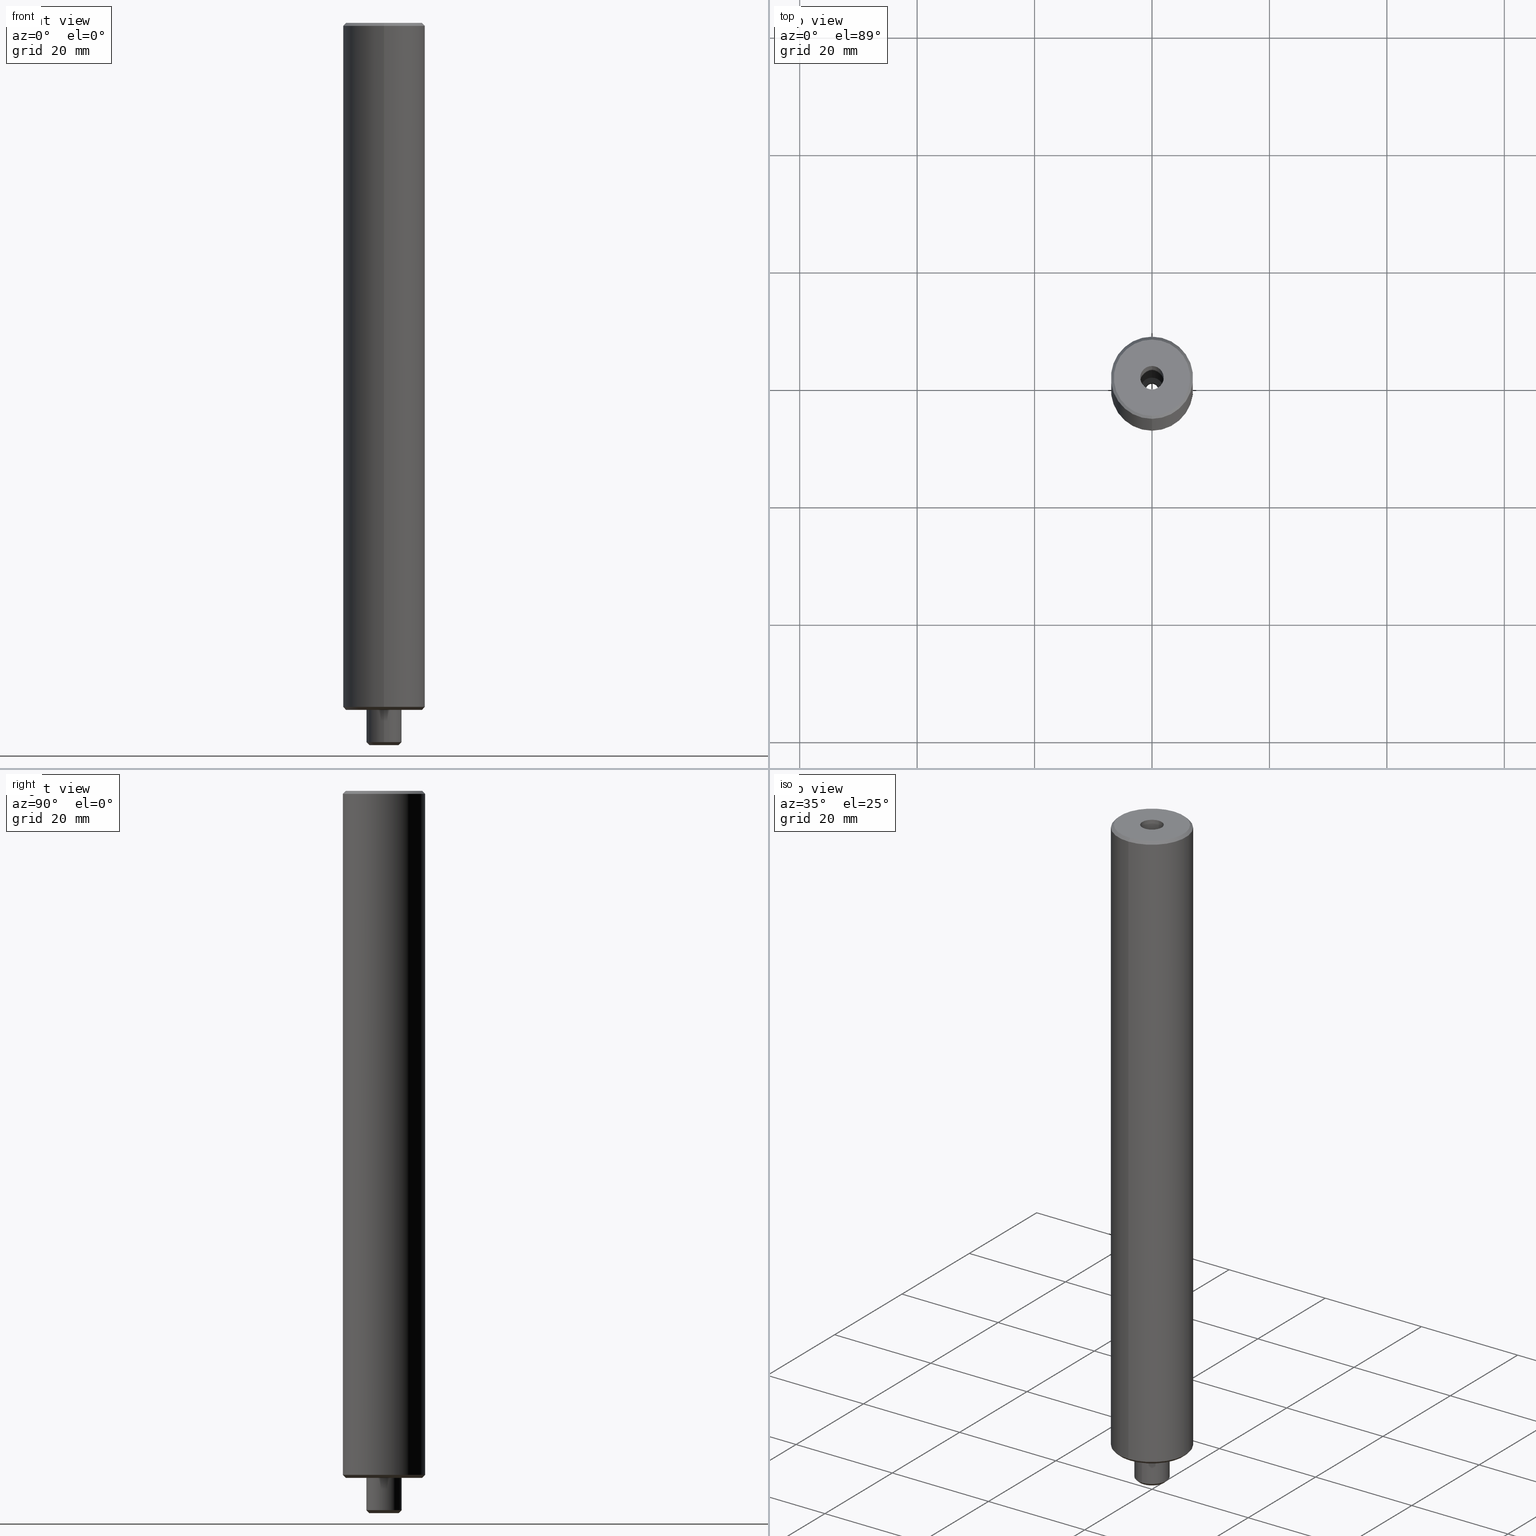
[diagram: canonical four-view strip — front | top / right | iso, engineering-drawing reading convention]
A machine part, canonical four-view strip (front | top / right | iso — engineering-drawing reading convention). The complete STEP part file that produces these views, byte-faithful:
ISO-10303-21;
HEADER;
FILE_DESCRIPTION(('no description'),'unknown implementation level');
FILE_NAME('2B4671EF-FBDA-4EDB-9770-4CDC827F8C58_export.stp','  ',('CIMSOURCE GmbH'),('CADClick - KiM GmbH - www.kimweb.de'),'unknown preprocess','ACIS','unknown authorization');
FILE_SCHEMA(('automotive_design'));
ENDSEC;
DATA;
#1=MECHANICAL_DESIGN_GEOMETRIC_PRESENTATION_REPRESENTATION(' ',(#10,#11,#12,#13,#14,#15,#16,#17,#18,#19,#20,#21,#22,#23,#24,#25,#26,#27,#28,#29,#30,#31,#32,#33,#34,#35,#36,#37,#38,#39,#40,#41,#42,#43,#44,#45,#46,#47,#48,#49,#50,#51,#52,#53,#54,#55,#56,#57,#58,#59,#60,#61,#62,#63,#64,#65,#66,#67,#68,#69,#70,#71,#72,#73,#74,#75,#76,#77,#78,#79,#80,#81,#82,#83,#84,#85,#86,#87,#88,#89),#6);
#2=PRODUCT_DEFINITION_CONTEXT('',#90,'design');
#3=APPLICATION_PROTOCOL_DEFINITION('INTERNATIONAL STANDARD','automotive_design',1994,#90);
#4=PRODUCT_CATEGORY_RELATIONSHIP('NONE','NONE',#91,#92);
#5=SHAPE_DEFINITION_REPRESENTATION(#93,#94);
#6= (GEOMETRIC_REPRESENTATION_CONTEXT(3)GLOBAL_UNCERTAINTY_ASSIGNED_CONTEXT((#97))GLOBAL_UNIT_ASSIGNED_CONTEXT((#99,#100,#101))REPRESENTATION_CONTEXT('NONE','WORKSPACE'));
#10=STYLED_ITEM('',(#103),#104);
#11=STYLED_ITEM('',(#105),#106);
#12=STYLED_ITEM('',(#107),#108);
#13=STYLED_ITEM('',(#109),#110);
#14=STYLED_ITEM('',(#111),#112);
#15=STYLED_ITEM('',(#113),#114);
#16=STYLED_ITEM('',(#115),#116);
#17=STYLED_ITEM('',(#117),#118);
#18=STYLED_ITEM('',(#119),#120);
#19=STYLED_ITEM('',(#121),#122);
#20=STYLED_ITEM('',(#123),#124);
#21=STYLED_ITEM('',(#125),#126);
#22=STYLED_ITEM('',(#127),#128);
#23=STYLED_ITEM('',(#129),#130);
#24=STYLED_ITEM('',(#131),#132);
#25=STYLED_ITEM('',(#133),#134);
#26=STYLED_ITEM('',(#135),#136);
#27=STYLED_ITEM('',(#137),#138);
#28=STYLED_ITEM('',(#139),#140);
#29=STYLED_ITEM('',(#141),#142);
#30=STYLED_ITEM('',(#143),#144);
#31=STYLED_ITEM('',(#145),#146);
#32=STYLED_ITEM('',(#147),#148);
#33=STYLED_ITEM('',(#149),#150);
#34=STYLED_ITEM('',(#151),#152);
#35=STYLED_ITEM('',(#153),#154);
#36=STYLED_ITEM('',(#155),#156);
#37=STYLED_ITEM('',(#157),#158);
#38=STYLED_ITEM('',(#159),#160);
#39=STYLED_ITEM('',(#161),#162);
#40=STYLED_ITEM('',(#163),#164);
#41=STYLED_ITEM('',(#165),#166);
#42=STYLED_ITEM('',(#167),#168);
#43=STYLED_ITEM('',(#169),#170);
#44=STYLED_ITEM('',(#171),#172);
#45=STYLED_ITEM('',(#173),#174);
#46=STYLED_ITEM('',(#175),#176);
#47=STYLED_ITEM('',(#177),#178);
#48=STYLED_ITEM('',(#179),#180);
#49=STYLED_ITEM('',(#181),#182);
#50=STYLED_ITEM('',(#183),#184);
#51=STYLED_ITEM('',(#185),#186);
#52=STYLED_ITEM('',(#187),#188);
#53=STYLED_ITEM('',(#189),#190);
#54=STYLED_ITEM('',(#191),#192);
#55=STYLED_ITEM('',(#193),#194);
#56=STYLED_ITEM('',(#195),#196);
#57=STYLED_ITEM('',(#197),#198);
#58=STYLED_ITEM('',(#199),#200);
#59=STYLED_ITEM('',(#201),#202);
#60=STYLED_ITEM('',(#203),#204);
#61=STYLED_ITEM('',(#205),#206);
#62=STYLED_ITEM('',(#207),#208);
#63=STYLED_ITEM('',(#209),#210);
#64=STYLED_ITEM('',(#211),#212);
#65=STYLED_ITEM('',(#213),#214);
#66=STYLED_ITEM('',(#215),#216);
#67=STYLED_ITEM('',(#217),#218);
#68=STYLED_ITEM('',(#219),#220);
#69=STYLED_ITEM('',(#221),#222);
#70=STYLED_ITEM('',(#223),#224);
#71=STYLED_ITEM('',(#225),#226);
#72=STYLED_ITEM('',(#227),#228);
#73=STYLED_ITEM('',(#229),#230);
#74=STYLED_ITEM('',(#231),#232);
#75=STYLED_ITEM('',(#233),#234);
#76=STYLED_ITEM('',(#235),#236);
#77=STYLED_ITEM('',(#237),#238);
#78=STYLED_ITEM('',(#239),#240);
#79=STYLED_ITEM('',(#241),#242);
#80=STYLED_ITEM('',(#243),#244);
#81=STYLED_ITEM('',(#245),#246);
#82=STYLED_ITEM('',(#247),#248);
#83=STYLED_ITEM('',(#249),#250);
#84=STYLED_ITEM('',(#251),#252);
#85=STYLED_ITEM('',(#253),#254);
#86=STYLED_ITEM('',(#255),#256);
#87=STYLED_ITEM('',(#257),#258);
#88=STYLED_ITEM('',(#259),#260);
#89=STYLED_ITEM('',(#261),#262);
#90=APPLICATION_CONTEXT(' ');
#91=PRODUCT_CATEGORY('part','NONE');
#92=PRODUCT_RELATED_PRODUCT_CATEGORY('detail',' ',(#263));
#93=PRODUCT_DEFINITION_SHAPE('NONE','NONE',#264);
#94=ADVANCED_BREP_SHAPE_REPRESENTATION('NONE',(#180,#265),#6);
#97=UNCERTAINTY_MEASURE_WITH_UNIT(LENGTH_MEASURE(1.0E-006),#99,'','');
#99= (CONVERSION_BASED_UNIT('MILLIMETRE',#268)LENGTH_UNIT()NAMED_UNIT(#271));
#100= (NAMED_UNIT(#273)PLANE_ANGLE_UNIT()SI_UNIT($,.RADIAN.));
#101= (NAMED_UNIT(#273)SOLID_ANGLE_UNIT()SI_UNIT($,.STERADIAN.));
#103=PRESENTATION_STYLE_ASSIGNMENT((#279));
#104=VERTEX_POINT('NONE',#280);
#105=PRESENTATION_STYLE_ASSIGNMENT((#281));
#106=VERTEX_POINT('NONE',#282);
#107=PRESENTATION_STYLE_ASSIGNMENT((#283));
#108=EDGE_CURVE('NONE',#216,#236,#284,.T.);
#109=PRESENTATION_STYLE_ASSIGNMENT((#285));
#110=EDGE_CURVE('NONE',#106,#104,#286,.T.);
#111=PRESENTATION_STYLE_ASSIGNMENT((#287));
#112=EDGE_CURVE('NONE',#154,#262,#288,.T.);
#113=PRESENTATION_STYLE_ASSIGNMENT((#289));
#114=VERTEX_POINT('NONE',#290);
#115=PRESENTATION_STYLE_ASSIGNMENT((#291));
#116=EDGE_CURVE('NONE',#194,#226,#292,.T.);
#117=PRESENTATION_STYLE_ASSIGNMENT((#293));
#118=EDGE_CURVE('NONE',#104,#106,#294,.T.);
#119=PRESENTATION_STYLE_ASSIGNMENT((#295));
#120=EDGE_CURVE('NONE',#262,#154,#296,.T.);
#121=PRESENTATION_STYLE_ASSIGNMENT((#297));
#122=EDGE_CURVE('NONE',#170,#134,#298,.T.);
#123=PRESENTATION_STYLE_ASSIGNMENT((#299));
#124=EDGE_CURVE('NONE',#230,#152,#300,.T.);
#125=PRESENTATION_STYLE_ASSIGNMENT((#301));
#126=EDGE_CURVE('NONE',#152,#230,#302,.T.);
#127=PRESENTATION_STYLE_ASSIGNMENT((#303));
#128=EDGE_CURVE('NONE',#104,#170,#304,.T.);
#129=PRESENTATION_STYLE_ASSIGNMENT((#305));
#130=ADVANCED_FACE('NONE',(#306),#307,.T.);
#131=PRESENTATION_STYLE_ASSIGNMENT((#308));
#132=ADVANCED_FACE('NONE',(#309,#310),#311,.F.);
#133=PRESENTATION_STYLE_ASSIGNMENT((#312));
#134=VERTEX_POINT('NONE',#313);
#135=PRESENTATION_STYLE_ASSIGNMENT((#314));
#136=EDGE_CURVE('NONE',#230,#262,#315,.T.);
#137=PRESENTATION_STYLE_ASSIGNMENT((#316));
#138=EDGE_CURVE('NONE',#186,#166,#317,.T.);
#139=PRESENTATION_STYLE_ASSIGNMENT((#318));
#140=ADVANCED_FACE('NONE',(#319),#320,.T.);
#141=PRESENTATION_STYLE_ASSIGNMENT((#321));
#142=ADVANCED_FACE('NONE',(#322),#323,.T.);
#143=PRESENTATION_STYLE_ASSIGNMENT((#324));
#144=ADVANCED_FACE('NONE',(#325),#326,.T.);
#145=PRESENTATION_STYLE_ASSIGNMENT((#327));
#146=EDGE_CURVE('NONE',#164,#172,#328,.T.);
#147=PRESENTATION_STYLE_ASSIGNMENT((#329));
#148=ADVANCED_FACE('NONE',(#330),#331,.F.);
#149=PRESENTATION_STYLE_ASSIGNMENT((#332));
#150=EDGE_CURVE('NONE',#254,#258,#333,.T.);
#151=PRESENTATION_STYLE_ASSIGNMENT((#334));
#152=VERTEX_POINT('NONE',#335);
#153=PRESENTATION_STYLE_ASSIGNMENT((#336));
#154=VERTEX_POINT('NONE',#337);
#155=PRESENTATION_STYLE_ASSIGNMENT((#338));
#156=EDGE_CURVE('NONE',#170,#194,#339,.T.);
#157=PRESENTATION_STYLE_ASSIGNMENT((#340));
#158=EDGE_CURVE('NONE',#254,#186,#341,.T.);
#159=PRESENTATION_STYLE_ASSIGNMENT((#342));
#160=EDGE_CURVE('NONE',#114,#228,#343,.T.);
#161=PRESENTATION_STYLE_ASSIGNMENT((#344));
#162=ADVANCED_FACE('NONE',(#345,#346),#347,.F.);
#163=PRESENTATION_STYLE_ASSIGNMENT((#348));
#164=VERTEX_POINT('NONE',#349);
#165=PRESENTATION_STYLE_ASSIGNMENT((#350));
#166=VERTEX_POINT('NONE',#351);
#167=PRESENTATION_STYLE_ASSIGNMENT((#352));
#168=EDGE_CURVE('NONE',#246,#252,#353,.T.);
#169=PRESENTATION_STYLE_ASSIGNMENT((#354));
#170=VERTEX_POINT('NONE',#355);
#171=PRESENTATION_STYLE_ASSIGNMENT((#356));
#172=VERTEX_POINT('NONE',#357);
#173=PRESENTATION_STYLE_ASSIGNMENT((#358));
#174=ADVANCED_FACE('NONE',(#359),#360,.F.);
#175=PRESENTATION_STYLE_ASSIGNMENT((#361));
#176=EDGE_CURVE('NONE',#134,#170,#362,.T.);
#177=PRESENTATION_STYLE_ASSIGNMENT((#363));
#178=EDGE_CURVE('NONE',#166,#114,#364,.T.);
#179=PRESENTATION_STYLE_ASSIGNMENT((#365));
#180=MANIFOLD_SOLID_BREP('NONE',#366);
#181=PRESENTATION_STYLE_ASSIGNMENT((#367));
#182=EDGE_CURVE('NONE',#228,#114,#368,.T.);
#183=PRESENTATION_STYLE_ASSIGNMENT((#369));
#184=ADVANCED_FACE('NONE',(#370),#371,.T.);
#185=PRESENTATION_STYLE_ASSIGNMENT((#372));
#186=VERTEX_POINT('NONE',#373);
#187=PRESENTATION_STYLE_ASSIGNMENT((#374));
#188=EDGE_CURVE('NONE',#106,#134,#375,.T.);
#189=PRESENTATION_STYLE_ASSIGNMENT((#376));
#190=EDGE_CURVE('NONE',#216,#230,#377,.T.);
#191=PRESENTATION_STYLE_ASSIGNMENT((#378));
#192=EDGE_CURVE('NONE',#186,#164,#379,.T.);
#193=PRESENTATION_STYLE_ASSIGNMENT((#380));
#194=VERTEX_POINT('NONE',#381);
#195=PRESENTATION_STYLE_ASSIGNMENT((#382));
#196=EDGE_CURVE('NONE',#252,#246,#383,.T.);
#197=PRESENTATION_STYLE_ASSIGNMENT((#384));
#198=ADVANCED_FACE('NONE',(#385),#386,.F.);
#199=PRESENTATION_STYLE_ASSIGNMENT((#387));
#200=ADVANCED_FACE('NONE',(#388),#389,.F.);
#201=PRESENTATION_STYLE_ASSIGNMENT((#390));
#202=EDGE_CURVE('NONE',#134,#226,#391,.T.);
#203=PRESENTATION_STYLE_ASSIGNMENT((#392));
#204=EDGE_CURVE('NONE',#166,#172,#393,.T.);
#205=PRESENTATION_STYLE_ASSIGNMENT((#394));
#206=ADVANCED_FACE('NONE',(#395),#396,.T.);
#207=PRESENTATION_STYLE_ASSIGNMENT((#397));
#208=EDGE_CURVE('NONE',#258,#254,#398,.T.);
#209=PRESENTATION_STYLE_ASSIGNMENT((#399));
#210=EDGE_CURVE('NONE',#152,#154,#400,.T.);
#211=PRESENTATION_STYLE_ASSIGNMENT((#401));
#212=ADVANCED_FACE('NONE',(#402),#403,.T.);
#213=PRESENTATION_STYLE_ASSIGNMENT((#404));
#214=ADVANCED_FACE('NONE',(#405,#406),#407,.F.);
#215=PRESENTATION_STYLE_ASSIGNMENT((#408));
#216=VERTEX_POINT('NONE',#409);
#217=PRESENTATION_STYLE_ASSIGNMENT((#410));
#218=EDGE_CURVE('NONE',#172,#228,#411,.T.);
#219=PRESENTATION_STYLE_ASSIGNMENT((#412));
#220=EDGE_CURVE('NONE',#246,#226,#413,.T.);
#221=PRESENTATION_STYLE_ASSIGNMENT((#414));
#222=EDGE_CURVE('NONE',#172,#166,#415,.T.);
#223=PRESENTATION_STYLE_ASSIGNMENT((#416));
#224=EDGE_CURVE('NONE',#252,#194,#417,.T.);
#225=PRESENTATION_STYLE_ASSIGNMENT((#418));
#226=VERTEX_POINT('NONE',#419);
#227=PRESENTATION_STYLE_ASSIGNMENT((#420));
#228=VERTEX_POINT('NONE',#421);
#229=PRESENTATION_STYLE_ASSIGNMENT((#422));
#230=VERTEX_POINT('NONE',#423);
#231=PRESENTATION_STYLE_ASSIGNMENT((#424));
#232=EDGE_CURVE('NONE',#258,#164,#425,.T.);
#233=PRESENTATION_STYLE_ASSIGNMENT((#426));
#234=ADVANCED_FACE('NONE',(#427),#428,.T.);
#235=PRESENTATION_STYLE_ASSIGNMENT((#429));
#236=VERTEX_POINT('NONE',#430);
#237=PRESENTATION_STYLE_ASSIGNMENT((#431));
#238=EDGE_CURVE('NONE',#226,#194,#432,.T.);
#239=PRESENTATION_STYLE_ASSIGNMENT((#433));
#240=EDGE_CURVE('NONE',#164,#186,#434,.T.);
#241=PRESENTATION_STYLE_ASSIGNMENT((#435));
#242=ADVANCED_FACE('NONE',(#436),#437,.T.);
#243=PRESENTATION_STYLE_ASSIGNMENT((#438));
#244=EDGE_CURVE('NONE',#236,#152,#439,.T.);
#245=PRESENTATION_STYLE_ASSIGNMENT((#440));
#246=VERTEX_POINT('NONE',#441);
#247=PRESENTATION_STYLE_ASSIGNMENT((#442));
#248=ADVANCED_FACE('NONE',(#443),#444,.T.);
#249=PRESENTATION_STYLE_ASSIGNMENT((#445));
#250=EDGE_CURVE('NONE',#236,#216,#446,.T.);
#251=PRESENTATION_STYLE_ASSIGNMENT((#447));
#252=VERTEX_POINT('NONE',#448);
#253=PRESENTATION_STYLE_ASSIGNMENT((#449));
#254=VERTEX_POINT('NONE',#450);
#255=PRESENTATION_STYLE_ASSIGNMENT((#451));
#256=ADVANCED_FACE('NONE',(#452),#453,.F.);
#257=PRESENTATION_STYLE_ASSIGNMENT((#454));
#258=VERTEX_POINT('NONE',#455);
#259=PRESENTATION_STYLE_ASSIGNMENT((#456));
#260=ADVANCED_FACE('NONE',(#457),#458,.F.);
#261=PRESENTATION_STYLE_ASSIGNMENT((#459));
#262=VERTEX_POINT('NONE',#460);
#263=PRODUCT('NONE','NONE','PART-NONE-DESC',(#461));
#264=PRODUCT_DEFINITION('NONE','NONE',#462,#2);
#265=AXIS2_PLACEMENT_3D('',#463,#464,#465);
#268=LENGTH_MEASURE_WITH_UNIT(LENGTH_MEASURE(1.0),#466);
#271=DIMENSIONAL_EXPONENTS(1.0,0.0,0.0,0.0,0.0,0.0,0.0);
#273=DIMENSIONAL_EXPONENTS(0.0,0.0,0.0,0.0,0.0,0.0,0.0);
#279=POINT_STYLE(' ',#467,POSITIVE_LENGTH_MEASURE(1.0E-006),#468);
#280=CARTESIAN_POINT('',(0.0,6.5,0.0));
#281=POINT_STYLE(' ',#469,POSITIVE_LENGTH_MEASURE(1.0E-006),#470);
#282=CARTESIAN_POINT('',(-8.26609288830104E-016,-6.5,0.0));
#283=CURVE_STYLE('',#471,POSITIVE_LENGTH_MEASURE(1.0E-006),#472);
#284=CIRCLE('',#473,2.49999999999997);
#285=CURVE_STYLE('',#474,POSITIVE_LENGTH_MEASURE(1.0E-006),#475);
#286=CIRCLE('',#476,6.5);
#287=CURVE_STYLE('',#477,POSITIVE_LENGTH_MEASURE(1.0E-006),#478);
#288=CIRCLE('',#479,3.0);
#289=POINT_STYLE(' ',#480,POSITIVE_LENGTH_MEASURE(1.0E-006),#481);
#290=CARTESIAN_POINT('',(-2.44921270764475E-016,-2.0,117.0));
#291=CURVE_STYLE('',#482,POSITIVE_LENGTH_MEASURE(1.0E-006),#483);
#292=CIRCLE('',#484,6.99999999999999);
#293=CURVE_STYLE('',#485,POSITIVE_LENGTH_MEASURE(1.0E-006),#486);
#294=CIRCLE('',#487,6.5);
#295=CURVE_STYLE('',#488,POSITIVE_LENGTH_MEASURE(1.0E-006),#489);
#296=CIRCLE('',#490,3.0);
#297=CURVE_STYLE('',#491,POSITIVE_LENGTH_MEASURE(1.0E-006),#492);
#298=CIRCLE('',#493,6.99999999999999);
#299=CURVE_STYLE('',#494,POSITIVE_LENGTH_MEASURE(1.0E-006),#495);
#300=CIRCLE('',#496,3.0);
#301=CURVE_STYLE('',#497,POSITIVE_LENGTH_MEASURE(1.0E-006),#498);
#302=CIRCLE('',#499,3.0);
#303=CURVE_STYLE('',#500,POSITIVE_LENGTH_MEASURE(1.0E-006),#501);
#304=LINE('',#502,#503);
#305=SURFACE_STYLE_USAGE(.BOTH.,#504);
#306=FACE_OUTER_BOUND('',#505,.T.);
#307=CYLINDRICAL_SURFACE('',#506,3.0);
#308=SURFACE_STYLE_USAGE(.BOTH.,#507);
#309=FACE_OUTER_BOUND('',#508,.T.);
#310=FACE_BOUND('',#509,.T.);
#311=PLANE('',#510);
#312=POINT_STYLE(' ',#511,POSITIVE_LENGTH_MEASURE(1.0E-006),#512);
#313=CARTESIAN_POINT('',(-8.57224447675663E-016,-6.99999999999999,0.499999999999994));
#314=CURVE_STYLE('',#513,POSITIVE_LENGTH_MEASURE(1.0E-006),#514);
#315=LINE('',#515,#516);
#316=CURVE_STYLE('',#517,POSITIVE_LENGTH_MEASURE(1.0E-006),#518);
#317=LINE('',#519,#520);
#318=SURFACE_STYLE_USAGE(.BOTH.,#521);
#319=FACE_OUTER_BOUND('',#522,.T.);
#320=CONICAL_SURFACE('',#523,6.49999999999999,0.785398163397433);
#321=SURFACE_STYLE_USAGE(.BOTH.,#524);
#322=FACE_OUTER_BOUND('',#525,.T.);
#323=CYLINDRICAL_SURFACE('',#526,6.99999999999999);
#324=SURFACE_STYLE_USAGE(.BOTH.,#527);
#325=FACE_OUTER_BOUND('',#528,.T.);
#326=CYLINDRICAL_SURFACE('',#529,6.99999999999999);
#327=CURVE_STYLE('',#530,POSITIVE_LENGTH_MEASURE(1.0E-006),#531);
#328=LINE('',#532,#533);
#329=SURFACE_STYLE_USAGE(.BOTH.,#534);
#330=FACE_OUTER_BOUND('',#535,.T.);
#331=CYLINDRICAL_SURFACE('',#536,1.1);
#332=CURVE_STYLE('',#537,POSITIVE_LENGTH_MEASURE(1.0E-006),#538);
#333=CIRCLE('',#539,1.1);
#334=POINT_STYLE(' ',#540,POSITIVE_LENGTH_MEASURE(1.0E-006),#541);
#335=CARTESIAN_POINT('',(0.0,3.0,-5.49999999999997));
#336=POINT_STYLE(' ',#542,POSITIVE_LENGTH_MEASURE(1.0E-006),#543);
#337=CARTESIAN_POINT('',(0.0,3.0,0.0));
#338=CURVE_STYLE('',#544,POSITIVE_LENGTH_MEASURE(1.0E-006),#545);
#339=LINE('',#546,#547);
#340=CURVE_STYLE('',#548,POSITIVE_LENGTH_MEASURE(1.0E-006),#549);
#341=LINE('',#550,#551);
#342=CURVE_STYLE('',#552,POSITIVE_LENGTH_MEASURE(1.0E-006),#553);
#343=CIRCLE('',#554,2.0);
#344=SURFACE_STYLE_USAGE(.BOTH.,#555);
#345=FACE_OUTER_BOUND('',#556,.T.);
#346=FACE_BOUND('',#557,.T.);
#347=PLANE('',#558);
#348=POINT_STYLE(' ',#559,POSITIVE_LENGTH_MEASURE(1.0E-006),#560);
#349=CARTESIAN_POINT('',(0.0,1.1,2.67242678916042));
#350=POINT_STYLE(' ',#561,POSITIVE_LENGTH_MEASURE(1.0E-006),#562);
#351=CARTESIAN_POINT('',(-2.44921270764475E-016,-2.0,3.0));
#352=CURVE_STYLE('',#563,POSITIVE_LENGTH_MEASURE(1.0E-006),#564);
#353=CIRCLE('',#565,6.49999999999999);
#354=POINT_STYLE(' ',#566,POSITIVE_LENGTH_MEASURE(1.0E-006),#567);
#355=CARTESIAN_POINT('',(0.0,6.99999999999999,0.499999999999994));
#356=POINT_STYLE(' ',#568,POSITIVE_LENGTH_MEASURE(1.0E-006),#569);
#357=CARTESIAN_POINT('',(0.0,2.0,3.0));
#358=SURFACE_STYLE_USAGE(.BOTH.,#570);
#359=FACE_OUTER_BOUND('',#571,.T.);
#360=CONICAL_SURFACE('',#572,2.0,1.22173047639603);
#361=CURVE_STYLE('',#573,POSITIVE_LENGTH_MEASURE(1.0E-006),#574);
#362=CIRCLE('',#575,6.99999999999999);
#363=CURVE_STYLE('',#576,POSITIVE_LENGTH_MEASURE(1.0E-006),#577);
#364=LINE('',#578,#579);
#365=SURFACE_STYLE_USAGE(.BOTH.,#580);
#366=CLOSED_SHELL('',(#242,#234,#206,#130,#144,#260,#200,#198,#132,#148,#174,#256,#214,#142,#162,#248,#212,#140,#184));
#367=CURVE_STYLE('',#581,POSITIVE_LENGTH_MEASURE(1.0E-006),#582);
#368=CIRCLE('',#583,2.0);
#369=SURFACE_STYLE_USAGE(.BOTH.,#584);
#370=FACE_OUTER_BOUND('',#585,.T.);
#371=CONICAL_SURFACE('',#586,3.0,0.785398163397445);
#372=POINT_STYLE(' ',#587,POSITIVE_LENGTH_MEASURE(1.0E-006),#588);
#373=CARTESIAN_POINT('',(-1.34706698920462E-016,-1.1,2.67242678916042));
#374=CURVE_STYLE('',#589,POSITIVE_LENGTH_MEASURE(1.0E-006),#590);
#375=LINE('',#591,#592);
#376=CURVE_STYLE('',#593,POSITIVE_LENGTH_MEASURE(1.0E-006),#594);
#377=LINE('',#595,#596);
#378=CURVE_STYLE('',#597,POSITIVE_LENGTH_MEASURE(1.0E-006),#598);
#379=CIRCLE('',#599,1.1);
#380=POINT_STYLE(' ',#600,POSITIVE_LENGTH_MEASURE(1.0E-006),#601);
#381=CARTESIAN_POINT('',(0.0,6.99999999999999,116.5));
#382=CURVE_STYLE('',#602,POSITIVE_LENGTH_MEASURE(1.0E-006),#603);
#383=CIRCLE('',#604,6.49999999999999);
#384=SURFACE_STYLE_USAGE(.BOTH.,#605);
#385=FACE_OUTER_BOUND('',#606,.T.);
#386=CYLINDRICAL_SURFACE('',#607,1.1);
#387=SURFACE_STYLE_USAGE(.BOTH.,#608);
#388=FACE_OUTER_BOUND('',#609,.T.);
#389=CONICAL_SURFACE('',#610,2.0,1.22173047639603);
#390=CURVE_STYLE('',#611,POSITIVE_LENGTH_MEASURE(1.0E-006),#612);
#391=LINE('',#613,#614);
#392=CURVE_STYLE('',#615,POSITIVE_LENGTH_MEASURE(1.0E-006),#616);
#393=CIRCLE('',#617,2.0);
#394=SURFACE_STYLE_USAGE(.BOTH.,#618);
#395=FACE_OUTER_BOUND('',#619,.T.);
#396=CONICAL_SURFACE('',#620,6.99999999999999,0.785398163397442);
#397=CURVE_STYLE('',#621,POSITIVE_LENGTH_MEASURE(1.0E-006),#622);
#398=CIRCLE('',#623,1.1);
#399=CURVE_STYLE('',#624,POSITIVE_LENGTH_MEASURE(1.0E-006),#625);
#400=LINE('',#626,#627);
#401=SURFACE_STYLE_USAGE(.BOTH.,#628);
#402=FACE_OUTER_BOUND('',#629,.T.);
#403=CONICAL_SURFACE('',#630,6.99999999999999,0.785398163397442);
#404=SURFACE_STYLE_USAGE(.BOTH.,#631);
#405=FACE_OUTER_BOUND('',#632,.T.);
#406=FACE_BOUND('',#633,.T.);
#407=PLANE('',#634);
#408=POINT_STYLE(' ',#635,POSITIVE_LENGTH_MEASURE(1.0E-006),#636);
#409=CARTESIAN_POINT('',(-3.36766747301152E-016,-2.49999999999997,-6.0));
#410=CURVE_STYLE('',#637,POSITIVE_LENGTH_MEASURE(1.0E-006),#638);
#411=LINE('',#639,#640);
#412=CURVE_STYLE('',#641,POSITIVE_LENGTH_MEASURE(1.0E-006),#642);
#413=LINE('',#643,#644);
#414=CURVE_STYLE('',#645,POSITIVE_LENGTH_MEASURE(1.0E-006),#646);
#415=CIRCLE('',#647,2.0);
#416=CURVE_STYLE('',#648,POSITIVE_LENGTH_MEASURE(1.0E-006),#649);
#417=LINE('',#650,#651);
#418=POINT_STYLE(' ',#652,POSITIVE_LENGTH_MEASURE(1.0E-006),#653);
#419=CARTESIAN_POINT('',(-8.57224447675663E-016,-6.99999999999999,116.5));
#420=POINT_STYLE(' ',#654,POSITIVE_LENGTH_MEASURE(1.0E-006),#655);
#421=CARTESIAN_POINT('',(0.0,2.0,117.0));
#422=POINT_STYLE(' ',#656,POSITIVE_LENGTH_MEASURE(1.0E-006),#657);
#423=CARTESIAN_POINT('',(-3.67381906146713E-016,-3.0,-5.49999999999997));
#424=CURVE_STYLE('',#658,POSITIVE_LENGTH_MEASURE(1.0E-006),#659);
#425=LINE('',#660,#661);
#426=SURFACE_STYLE_USAGE(.BOTH.,#662);
#427=FACE_OUTER_BOUND('',#663,.T.);
#428=CONICAL_SURFACE('',#664,6.49999999999999,0.785398163397433);
#429=POINT_STYLE(' ',#665,POSITIVE_LENGTH_MEASURE(1.0E-006),#666);
#430=CARTESIAN_POINT('',(0.0,2.49999999999997,-6.0));
#431=CURVE_STYLE('',#667,POSITIVE_LENGTH_MEASURE(1.0E-006),#668);
#432=CIRCLE('',#669,6.99999999999999);
#433=CURVE_STYLE('',#670,POSITIVE_LENGTH_MEASURE(1.0E-006),#671);
#434=CIRCLE('',#672,1.1);
#435=SURFACE_STYLE_USAGE(.BOTH.,#673);
#436=FACE_OUTER_BOUND('',#674,.T.);
#437=CONICAL_SURFACE('',#675,3.0,0.785398163397445);
#438=CURVE_STYLE('',#676,POSITIVE_LENGTH_MEASURE(1.0E-006),#677);
#439=LINE('',#678,#679);
#440=POINT_STYLE(' ',#680,POSITIVE_LENGTH_MEASURE(1.0E-006),#681);
#441=CARTESIAN_POINT('',(0.0,-6.49999999999999,117.0));
#442=SURFACE_STYLE_USAGE(.BOTH.,#682);
#443=FACE_OUTER_BOUND('',#683,.T.);
#444=CYLINDRICAL_SURFACE('',#684,3.0);
#445=CURVE_STYLE('',#685,POSITIVE_LENGTH_MEASURE(1.0E-006),#686);
#446=CIRCLE('',#687,2.49999999999997);
#447=POINT_STYLE(' ',#688,POSITIVE_LENGTH_MEASURE(1.0E-006),#689);
#448=CARTESIAN_POINT('',(-8.26609288830104E-016,6.49999999999999,117.0));
#449=POINT_STYLE(' ',#690,POSITIVE_LENGTH_MEASURE(1.0E-006),#691);
#450=CARTESIAN_POINT('',(-1.34706698920462E-016,-1.1,-6.0));
#451=SURFACE_STYLE_USAGE(.BOTH.,#692);
#452=FACE_OUTER_BOUND('',#693,.T.);
#453=CYLINDRICAL_SURFACE('',#694,2.0);
#454=POINT_STYLE(' ',#695,POSITIVE_LENGTH_MEASURE(1.0E-006),#696);
#455=CARTESIAN_POINT('',(0.0,1.1,-6.0));
#456=SURFACE_STYLE_USAGE(.BOTH.,#697);
#457=FACE_OUTER_BOUND('',#698,.T.);
#458=CYLINDRICAL_SURFACE('',#699,2.0);
#459=POINT_STYLE(' ',#700,POSITIVE_LENGTH_MEASURE(1.0E-006),#701);
#460=CARTESIAN_POINT('',(-3.67381906146713E-016,-3.0,0.0));
#461=PRODUCT_CONTEXT('',#90,'mechanical');
#462=PRODUCT_DEFINITION_FORMATION_WITH_SPECIFIED_SOURCE(' ','NONE',#263,.NOT_KNOWN.);
#463=CARTESIAN_POINT('',(0.0,0.0,0.0));
#464=DIRECTION('',(0.0,0.0,1.0));
#465=DIRECTION('',(1.0,0.0,0.0));
#466= (NAMED_UNIT(#271)LENGTH_UNIT()SI_UNIT(.MILLI.,.METRE.));
#467=PRE_DEFINED_MARKER('');
#468=COLOUR_RGB('', 0.5, 0.5, 0.5);
#469=PRE_DEFINED_MARKER('');
#470=COLOUR_RGB('', 0.5, 0.5, 0.5);
#471=DRAUGHTING_PRE_DEFINED_CURVE_FONT('continuous');
#472=COLOUR_RGB('', 0.5, 0.5, 0.5);
#473=AXIS2_PLACEMENT_3D('',#703,#704,#705);
#474=DRAUGHTING_PRE_DEFINED_CURVE_FONT('continuous');
#475=COLOUR_RGB('', 0.5, 0.5, 0.5);
#476=AXIS2_PLACEMENT_3D('',#706,#707,#708);
#477=DRAUGHTING_PRE_DEFINED_CURVE_FONT('continuous');
#478=COLOUR_RGB('', 0.5, 0.5, 0.5);
#479=AXIS2_PLACEMENT_3D('',#709,#710,#711);
#480=PRE_DEFINED_MARKER('');
#481=COLOUR_RGB('', 0.5, 0.5, 0.5);
#482=DRAUGHTING_PRE_DEFINED_CURVE_FONT('continuous');
#483=COLOUR_RGB('', 0.5, 0.5, 0.5);
#484=AXIS2_PLACEMENT_3D('',#712,#713,#714);
#485=DRAUGHTING_PRE_DEFINED_CURVE_FONT('continuous');
#486=COLOUR_RGB('', 0.5, 0.5, 0.5);
#487=AXIS2_PLACEMENT_3D('',#715,#716,#717);
#488=DRAUGHTING_PRE_DEFINED_CURVE_FONT('continuous');
#489=COLOUR_RGB('', 0.5, 0.5, 0.5);
#490=AXIS2_PLACEMENT_3D('',#718,#719,#720);
#491=DRAUGHTING_PRE_DEFINED_CURVE_FONT('continuous');
#492=COLOUR_RGB('', 0.5, 0.5, 0.5);
#493=AXIS2_PLACEMENT_3D('',#721,#722,#723);
#494=DRAUGHTING_PRE_DEFINED_CURVE_FONT('continuous');
#495=COLOUR_RGB('', 0.5, 0.5, 0.5);
#496=AXIS2_PLACEMENT_3D('',#724,#725,#726);
#497=DRAUGHTING_PRE_DEFINED_CURVE_FONT('continuous');
#498=COLOUR_RGB('', 0.5, 0.5, 0.5);
#499=AXIS2_PLACEMENT_3D('',#727,#728,#729);
#500=DRAUGHTING_PRE_DEFINED_CURVE_FONT('continuous');
#501=COLOUR_RGB('', 0.5, 0.5, 0.5);
#502=CARTESIAN_POINT('',(0.0,6.99999999999999,0.499999999999994));
#503=VECTOR('',#730,1000.0);
#504=SURFACE_SIDE_STYLE('',(#731));
#505=EDGE_LOOP('',(#732,#733,#734,#735));
#506=AXIS2_PLACEMENT_3D('',#736,#737,#738);
#507=SURFACE_SIDE_STYLE('',(#739));
#508=EDGE_LOOP('',(#740,#741));
#509=EDGE_LOOP('',(#742,#743));
#510=AXIS2_PLACEMENT_3D('',#744,#745,#746);
#511=PRE_DEFINED_MARKER('');
#512=COLOUR_RGB('', 0.5, 0.5, 0.5);
#513=DRAUGHTING_PRE_DEFINED_CURVE_FONT('continuous');
#514=COLOUR_RGB('', 0.5, 0.5, 0.5);
#515=CARTESIAN_POINT('',(-3.67381906146713E-016,-3.0,44.3839792060492));
#516=VECTOR('',#747,1000.0);
#517=DRAUGHTING_PRE_DEFINED_CURVE_FONT('continuous');
#518=COLOUR_RGB('', 0.5, 0.5, 0.5);
#519=CARTESIAN_POINT('',(-2.44921270764475E-016,-2.0,3.0));
#520=VECTOR('',#748,1000.0);
#521=SURFACE_SIDE_STYLE('',(#749));
#522=EDGE_LOOP('',(#750,#751,#752,#753));
#523=AXIS2_PLACEMENT_3D('',#754,#755,#756);
#524=SURFACE_SIDE_STYLE('',(#757));
#525=EDGE_LOOP('',(#758,#759,#760,#761));
#526=AXIS2_PLACEMENT_3D('',#762,#763,#764);
#527=SURFACE_SIDE_STYLE('',(#765));
#528=EDGE_LOOP('',(#766,#767,#768,#769));
#529=AXIS2_PLACEMENT_3D('',#770,#771,#772);
#530=DRAUGHTING_PRE_DEFINED_CURVE_FONT('continuous');
#531=COLOUR_RGB('', 0.5, 0.5, 0.5);
#532=CARTESIAN_POINT('',(0.0,2.0,3.0));
#533=VECTOR('',#773,1000.0);
#534=SURFACE_SIDE_STYLE('',(#774));
#535=EDGE_LOOP('',(#775,#776,#777,#778));
#536=AXIS2_PLACEMENT_3D('',#779,#780,#781);
#537=DRAUGHTING_PRE_DEFINED_CURVE_FONT('continuous');
#538=COLOUR_RGB('', 0.5, 0.5, 0.5);
#539=AXIS2_PLACEMENT_3D('',#782,#783,#784);
#540=PRE_DEFINED_MARKER('');
#541=COLOUR_RGB('', 0.5, 0.5, 0.5);
#542=PRE_DEFINED_MARKER('');
#543=COLOUR_RGB('', 0.5, 0.5, 0.5);
#544=DRAUGHTING_PRE_DEFINED_CURVE_FONT('continuous');
#545=COLOUR_RGB('', 0.5, 0.5, 0.5);
#546=CARTESIAN_POINT('',(0.0,6.99999999999999,44.3839792060492));
#547=VECTOR('',#785,1000.0);
#548=DRAUGHTING_PRE_DEFINED_CURVE_FONT('continuous');
#549=COLOUR_RGB('', 0.5, 0.5, 0.5);
#550=CARTESIAN_POINT('',(-1.34706698920462E-016,-1.1,44.3839792060492));
#551=VECTOR('',#786,1000.0);
#552=DRAUGHTING_PRE_DEFINED_CURVE_FONT('continuous');
#553=COLOUR_RGB('', 0.5, 0.5, 0.5);
#554=AXIS2_PLACEMENT_3D('',#787,#788,#789);
#555=SURFACE_SIDE_STYLE('',(#790));
#556=EDGE_LOOP('',(#791,#792));
#557=EDGE_LOOP('',(#793,#794));
#558=AXIS2_PLACEMENT_3D('',#795,#796,#797);
#559=PRE_DEFINED_MARKER('');
#560=COLOUR_RGB('', 0.5, 0.5, 0.5);
#561=PRE_DEFINED_MARKER('');
#562=COLOUR_RGB('', 0.5, 0.5, 0.5);
#563=DRAUGHTING_PRE_DEFINED_CURVE_FONT('continuous');
#564=COLOUR_RGB('', 0.5, 0.5, 0.5);
#565=AXIS2_PLACEMENT_3D('',#798,#799,#800);
#566=PRE_DEFINED_MARKER('');
#567=COLOUR_RGB('', 0.5, 0.5, 0.5);
#568=PRE_DEFINED_MARKER('');
#569=COLOUR_RGB('', 0.5, 0.5, 0.5);
#570=SURFACE_SIDE_STYLE('',(#801));
#571=EDGE_LOOP('',(#802,#803,#804,#805));
#572=AXIS2_PLACEMENT_3D('',#806,#807,#808);
#573=DRAUGHTING_PRE_DEFINED_CURVE_FONT('continuous');
#574=COLOUR_RGB('', 0.5, 0.5, 0.5);
#575=AXIS2_PLACEMENT_3D('',#809,#810,#811);
#576=DRAUGHTING_PRE_DEFINED_CURVE_FONT('continuous');
#577=COLOUR_RGB('', 0.5, 0.5, 0.5);
#578=CARTESIAN_POINT('',(-2.44921270764475E-016,-2.0,44.3839792060492));
#579=VECTOR('',#812,1000.0);
#580=SURFACE_SIDE_STYLE('',(#813));
#581=DRAUGHTING_PRE_DEFINED_CURVE_FONT('continuous');
#582=COLOUR_RGB('', 0.5, 0.5, 0.5);
#583=AXIS2_PLACEMENT_3D('',#814,#815,#816);
#584=SURFACE_SIDE_STYLE('',(#817));
#585=EDGE_LOOP('',(#818,#819,#820,#821));
#586=AXIS2_PLACEMENT_3D('',#822,#823,#824);
#587=PRE_DEFINED_MARKER('');
#588=COLOUR_RGB('', 0.5, 0.5, 0.5);
#589=DRAUGHTING_PRE_DEFINED_CURVE_FONT('continuous');
#590=COLOUR_RGB('', 0.5, 0.5, 0.5);
#591=CARTESIAN_POINT('',(-8.57224447675663E-016,-6.99999999999999,0.499999999999994));
#592=VECTOR('',#825,1000.0);
#593=DRAUGHTING_PRE_DEFINED_CURVE_FONT('continuous');
#594=COLOUR_RGB('', 0.5, 0.5, 0.5);
#595=CARTESIAN_POINT('',(-3.67381906146713E-016,-3.0,-5.49999999999997));
#596=VECTOR('',#826,1000.0);
#597=DRAUGHTING_PRE_DEFINED_CURVE_FONT('continuous');
#598=COLOUR_RGB('', 0.5, 0.5, 0.5);
#599=AXIS2_PLACEMENT_3D('',#827,#828,#829);
#600=PRE_DEFINED_MARKER('');
#601=COLOUR_RGB('', 0.5, 0.5, 0.5);
#602=DRAUGHTING_PRE_DEFINED_CURVE_FONT('continuous');
#603=COLOUR_RGB('', 0.5, 0.5, 0.5);
#604=AXIS2_PLACEMENT_3D('',#830,#831,#832);
#605=SURFACE_SIDE_STYLE('',(#833));
#606=EDGE_LOOP('',(#834,#835,#836,#837));
#607=AXIS2_PLACEMENT_3D('',#838,#839,#840);
#608=SURFACE_SIDE_STYLE('',(#841));
#609=EDGE_LOOP('',(#842,#843,#844,#845));
#610=AXIS2_PLACEMENT_3D('',#846,#847,#848);
#611=DRAUGHTING_PRE_DEFINED_CURVE_FONT('continuous');
#612=COLOUR_RGB('', 0.5, 0.5, 0.5);
#613=CARTESIAN_POINT('',(-8.57224447675663E-016,-6.99999999999999,44.3839792060492));
#614=VECTOR('',#849,1000.0);
#615=DRAUGHTING_PRE_DEFINED_CURVE_FONT('continuous');
#616=COLOUR_RGB('', 0.5, 0.5, 0.5);
#617=AXIS2_PLACEMENT_3D('',#850,#851,#852);
#618=SURFACE_SIDE_STYLE('',(#853));
#619=EDGE_LOOP('',(#854,#855,#856,#857));
#620=AXIS2_PLACEMENT_3D('',#858,#859,#860);
#621=DRAUGHTING_PRE_DEFINED_CURVE_FONT('continuous');
#622=COLOUR_RGB('', 0.5, 0.5, 0.5);
#623=AXIS2_PLACEMENT_3D('',#861,#862,#863);
#624=DRAUGHTING_PRE_DEFINED_CURVE_FONT('continuous');
#625=COLOUR_RGB('', 0.5, 0.5, 0.5);
#626=CARTESIAN_POINT('',(0.0,3.0,44.3839792060492));
#627=VECTOR('',#864,1000.0);
#628=SURFACE_SIDE_STYLE('',(#865));
#629=EDGE_LOOP('',(#866,#867,#868,#869));
#630=AXIS2_PLACEMENT_3D('',#870,#871,#872);
#631=SURFACE_SIDE_STYLE('',(#873));
#632=EDGE_LOOP('',(#874,#875));
#633=EDGE_LOOP('',(#876,#877));
#634=AXIS2_PLACEMENT_3D('',#878,#879,#880);
#635=PRE_DEFINED_MARKER('');
#636=COLOUR_RGB('', 0.5, 0.5, 0.5);
#637=DRAUGHTING_PRE_DEFINED_CURVE_FONT('continuous');
#638=COLOUR_RGB('', 0.5, 0.5, 0.5);
#639=CARTESIAN_POINT('',(0.0,2.0,44.3839792060492));
#640=VECTOR('',#881,1000.0);
#641=DRAUGHTING_PRE_DEFINED_CURVE_FONT('continuous');
#642=COLOUR_RGB('', 0.5, 0.5, 0.5);
#643=CARTESIAN_POINT('',(0.0,-6.49999999999999,117.0));
#644=VECTOR('',#882,1000.0);
#645=DRAUGHTING_PRE_DEFINED_CURVE_FONT('continuous');
#646=COLOUR_RGB('', 0.5, 0.5, 0.5);
#647=AXIS2_PLACEMENT_3D('',#883,#884,#885);
#648=DRAUGHTING_PRE_DEFINED_CURVE_FONT('continuous');
#649=COLOUR_RGB('', 0.5, 0.5, 0.5);
#650=CARTESIAN_POINT('',(-7.95994129984544E-016,6.49999999999999,117.0));
#651=VECTOR('',#886,1000.0);
#652=PRE_DEFINED_MARKER('');
#653=COLOUR_RGB('', 0.5, 0.5, 0.5);
#654=PRE_DEFINED_MARKER('');
#655=COLOUR_RGB('', 0.5, 0.5, 0.5);
#656=PRE_DEFINED_MARKER('');
#657=COLOUR_RGB('', 0.5, 0.5, 0.5);
#658=DRAUGHTING_PRE_DEFINED_CURVE_FONT('continuous');
#659=COLOUR_RGB('', 0.5, 0.5, 0.5);
#660=CARTESIAN_POINT('',(0.0,1.1,44.3839792060492));
#661=VECTOR('',#887,1000.0);
#662=SURFACE_SIDE_STYLE('',(#888));
#663=EDGE_LOOP('',(#889,#890,#891,#892));
#664=AXIS2_PLACEMENT_3D('',#893,#894,#895);
#665=PRE_DEFINED_MARKER('');
#666=COLOUR_RGB('', 0.5, 0.5, 0.5);
#667=DRAUGHTING_PRE_DEFINED_CURVE_FONT('continuous');
#668=COLOUR_RGB('', 0.5, 0.5, 0.5);
#669=AXIS2_PLACEMENT_3D('',#896,#897,#898);
#670=DRAUGHTING_PRE_DEFINED_CURVE_FONT('continuous');
#671=COLOUR_RGB('', 0.5, 0.5, 0.5);
#672=AXIS2_PLACEMENT_3D('',#899,#900,#901);
#673=SURFACE_SIDE_STYLE('',(#902));
#674=EDGE_LOOP('',(#903,#904,#905,#906));
#675=AXIS2_PLACEMENT_3D('',#907,#908,#909);
#676=DRAUGHTING_PRE_DEFINED_CURVE_FONT('continuous');
#677=COLOUR_RGB('', 0.5, 0.5, 0.5);
#678=CARTESIAN_POINT('',(0.0,3.0,-5.49999999999997));
#679=VECTOR('',#910,1000.0);
#680=PRE_DEFINED_MARKER('');
#681=COLOUR_RGB('', 0.5, 0.5, 0.5);
#682=SURFACE_SIDE_STYLE('',(#911));
#683=EDGE_LOOP('',(#912,#913,#914,#915));
#684=AXIS2_PLACEMENT_3D('',#916,#917,#918);
#685=DRAUGHTING_PRE_DEFINED_CURVE_FONT('continuous');
#686=COLOUR_RGB('', 0.5, 0.5, 0.5);
#687=AXIS2_PLACEMENT_3D('',#919,#920,#921);
#688=PRE_DEFINED_MARKER('');
#689=COLOUR_RGB('', 0.5, 0.5, 0.5);
#690=PRE_DEFINED_MARKER('');
#691=COLOUR_RGB('', 0.5, 0.5, 0.5);
#692=SURFACE_SIDE_STYLE('',(#922));
#693=EDGE_LOOP('',(#923,#924,#925,#926));
#694=AXIS2_PLACEMENT_3D('',#927,#928,#929);
#695=PRE_DEFINED_MARKER('');
#696=COLOUR_RGB('', 0.5, 0.5, 0.5);
#697=SURFACE_SIDE_STYLE('',(#930));
#698=EDGE_LOOP('',(#931,#932,#933,#934));
#699=AXIS2_PLACEMENT_3D('',#935,#936,#937);
#700=PRE_DEFINED_MARKER('');
#701=COLOUR_RGB('', 0.5, 0.5, 0.5);
#703=CARTESIAN_POINT('',(0.0,0.0,-6.0));
#704=DIRECTION('',(0.0,0.0,-1.0));
#705=DIRECTION('',(0.0,1.0,0.0));
#706=CARTESIAN_POINT('',(0.0,0.0,0.0));
#707=DIRECTION('',(0.0,0.0,-1.0));
#708=DIRECTION('',(0.0,1.0,0.0));
#709=CARTESIAN_POINT('',(0.0,0.0,0.0));
#710=DIRECTION('',(0.0,-0.0,1.0));
#711=DIRECTION('',(0.0,1.0,0.0));
#712=CARTESIAN_POINT('',(0.0,0.0,116.5));
#713=DIRECTION('',(0.0,0.0,-1.0));
#714=DIRECTION('',(0.0,-1.0,0.0));
#715=CARTESIAN_POINT('',(0.0,0.0,0.0));
#716=DIRECTION('',(0.0,0.0,-1.0));
#717=DIRECTION('',(0.0,1.0,0.0));
#718=CARTESIAN_POINT('',(0.0,0.0,0.0));
#719=DIRECTION('',(0.0,-0.0,1.0));
#720=DIRECTION('',(0.0,1.0,0.0));
#721=CARTESIAN_POINT('',(0.0,0.0,0.499999999999994));
#722=DIRECTION('',(0.0,-0.0,1.0));
#723=DIRECTION('',(0.0,1.0,0.0));
#724=CARTESIAN_POINT('',(0.0,0.0,-5.49999999999997));
#725=DIRECTION('',(0.0,-0.0,1.0));
#726=DIRECTION('',(0.0,1.0,0.0));
#727=CARTESIAN_POINT('',(0.0,0.0,-5.49999999999997));
#728=DIRECTION('',(0.0,-0.0,1.0));
#729=DIRECTION('',(0.0,1.0,0.0));
#730=DIRECTION('',(0.0,0.707106781186543,0.707106781186552));
#731=SURFACE_STYLE_FILL_AREA(#938);
#732=ORIENTED_EDGE('',*,*,#126,.T.);
#733=ORIENTED_EDGE('',*,*,#136,.T.);
#734=ORIENTED_EDGE('',*,*,#112,.F.);
#735=ORIENTED_EDGE('',*,*,#210,.F.);
#736=CARTESIAN_POINT('',(0.0,0.0,44.3839792060492));
#737=DIRECTION('',(-0.0,-0.0,1.0));
#738=DIRECTION('',(0.0,1.0,0.0));
#739=SURFACE_STYLE_FILL_AREA(#939);
#740=ORIENTED_EDGE('',*,*,#250,.T.);
#741=ORIENTED_EDGE('',*,*,#108,.T.);
#742=ORIENTED_EDGE('',*,*,#208,.T.);
#743=ORIENTED_EDGE('',*,*,#150,.T.);
#744=CARTESIAN_POINT('',(-1.1,0.0,-6.0));
#745=DIRECTION('',(-0.0,0.0,1.0));
#746=DIRECTION('',(0.0,1.0,0.0));
#747=DIRECTION('',(0.0,-0.0,1.0));
#748=DIRECTION('',(-1.15075355405443E-016,-0.939692620785909,0.342020143325666));
#749=SURFACE_STYLE_FILL_AREA(#940);
#750=ORIENTED_EDGE('',*,*,#224,.F.);
#751=ORIENTED_EDGE('',*,*,#168,.F.);
#752=ORIENTED_EDGE('',*,*,#220,.T.);
#753=ORIENTED_EDGE('',*,*,#116,.F.);
#754=CARTESIAN_POINT('',(0.0,0.0,117.0));
#755=DIRECTION('',(0.0,-0.0,-1.0));
#756=DIRECTION('',(0.0,-1.0,0.0));
#757=SURFACE_STYLE_FILL_AREA(#941);
#758=ORIENTED_EDGE('',*,*,#202,.F.);
#759=ORIENTED_EDGE('',*,*,#176,.T.);
#760=ORIENTED_EDGE('',*,*,#156,.T.);
#761=ORIENTED_EDGE('',*,*,#116,.T.);
#762=CARTESIAN_POINT('',(0.0,0.0,44.3839792060492));
#763=DIRECTION('',(-0.0,-0.0,1.0));
#764=DIRECTION('',(0.0,1.0,0.0));
#765=SURFACE_STYLE_FILL_AREA(#942);
#766=ORIENTED_EDGE('',*,*,#122,.T.);
#767=ORIENTED_EDGE('',*,*,#202,.T.);
#768=ORIENTED_EDGE('',*,*,#238,.T.);
#769=ORIENTED_EDGE('',*,*,#156,.F.);
#770=CARTESIAN_POINT('',(0.0,0.0,44.3839792060492));
#771=DIRECTION('',(-0.0,-0.0,1.0));
#772=DIRECTION('',(0.0,1.0,0.0));
#773=DIRECTION('',(0.0,0.939692620785909,0.342020143325666));
#774=SURFACE_STYLE_FILL_AREA(#943);
#775=ORIENTED_EDGE('',*,*,#158,.F.);
#776=ORIENTED_EDGE('',*,*,#208,.F.);
#777=ORIENTED_EDGE('',*,*,#232,.T.);
#778=ORIENTED_EDGE('',*,*,#240,.T.);
#779=CARTESIAN_POINT('',(0.0,0.0,44.3839792060492));
#780=DIRECTION('',(-0.0,-0.0,1.0));
#781=DIRECTION('',(0.0,1.0,0.0));
#782=CARTESIAN_POINT('',(0.0,0.0,-6.0));
#783=DIRECTION('',(0.0,-0.0,1.0));
#784=DIRECTION('',(0.0,1.0,0.0));
#785=DIRECTION('',(0.0,-0.0,1.0));
#786=DIRECTION('',(0.0,-0.0,1.0));
#787=CARTESIAN_POINT('',(0.0,0.0,117.0));
#788=DIRECTION('',(0.0,-0.0,1.0));
#789=DIRECTION('',(0.0,1.0,0.0));
#790=SURFACE_STYLE_FILL_AREA(#944);
#791=ORIENTED_EDGE('',*,*,#118,.T.);
#792=ORIENTED_EDGE('',*,*,#110,.T.);
#793=ORIENTED_EDGE('',*,*,#112,.T.);
#794=ORIENTED_EDGE('',*,*,#120,.T.);
#795=CARTESIAN_POINT('',(-3.0,0.0,0.0));
#796=DIRECTION('',(-0.0,0.0,1.0));
#797=DIRECTION('',(0.0,1.0,0.0));
#798=CARTESIAN_POINT('',(0.0,0.0,117.0));
#799=DIRECTION('',(-0.0,0.0,1.0));
#800=DIRECTION('',(0.0,-1.0,0.0));
#801=SURFACE_STYLE_FILL_AREA(#945);
#802=ORIENTED_EDGE('',*,*,#138,.F.);
#803=ORIENTED_EDGE('',*,*,#240,.F.);
#804=ORIENTED_EDGE('',*,*,#146,.T.);
#805=ORIENTED_EDGE('',*,*,#222,.T.);
#806=CARTESIAN_POINT('',(0.0,0.0,3.0));
#807=DIRECTION('',(-0.0,-0.0,1.0));
#808=DIRECTION('',(0.0,1.0,0.0));
#809=CARTESIAN_POINT('',(0.0,0.0,0.499999999999994));
#810=DIRECTION('',(0.0,-0.0,1.0));
#811=DIRECTION('',(0.0,1.0,0.0));
#812=DIRECTION('',(0.0,-0.0,1.0));
#813=SURFACE_STYLE_FILL_AREA(#946);
#814=CARTESIAN_POINT('',(0.0,0.0,117.0));
#815=DIRECTION('',(0.0,-0.0,1.0));
#816=DIRECTION('',(0.0,1.0,0.0));
#817=SURFACE_STYLE_FILL_AREA(#947);
#818=ORIENTED_EDGE('',*,*,#190,.F.);
#819=ORIENTED_EDGE('',*,*,#250,.F.);
#820=ORIENTED_EDGE('',*,*,#244,.T.);
#821=ORIENTED_EDGE('',*,*,#124,.F.);
#822=CARTESIAN_POINT('',(0.0,0.0,-5.49999999999997));
#823=DIRECTION('',(-0.0,-0.0,1.0));
#824=DIRECTION('',(0.0,1.0,0.0));
#825=DIRECTION('',(-8.6592745707193E-017,-0.707106781186543,0.707106781186552));
#826=DIRECTION('',(-8.65927457071933E-017,-0.707106781186545,0.70710678118655));
#827=CARTESIAN_POINT('',(0.0,0.0,2.67242678916042));
#828=DIRECTION('',(0.0,-0.0,1.0));
#829=DIRECTION('',(0.0,1.0,0.0));
#830=CARTESIAN_POINT('',(0.0,0.0,117.0));
#831=DIRECTION('',(-0.0,0.0,1.0));
#832=DIRECTION('',(0.0,-1.0,0.0));
#833=SURFACE_STYLE_FILL_AREA(#948);
#834=ORIENTED_EDGE('',*,*,#150,.F.);
#835=ORIENTED_EDGE('',*,*,#158,.T.);
#836=ORIENTED_EDGE('',*,*,#192,.T.);
#837=ORIENTED_EDGE('',*,*,#232,.F.);
#838=CARTESIAN_POINT('',(0.0,0.0,44.3839792060492));
#839=DIRECTION('',(-0.0,-0.0,1.0));
#840=DIRECTION('',(0.0,1.0,0.0));
#841=SURFACE_STYLE_FILL_AREA(#949);
#842=ORIENTED_EDGE('',*,*,#192,.F.);
#843=ORIENTED_EDGE('',*,*,#138,.T.);
#844=ORIENTED_EDGE('',*,*,#204,.T.);
#845=ORIENTED_EDGE('',*,*,#146,.F.);
#846=CARTESIAN_POINT('',(0.0,0.0,3.0));
#847=DIRECTION('',(-0.0,-0.0,1.0));
#848=DIRECTION('',(0.0,1.0,0.0));
#849=DIRECTION('',(0.0,-0.0,1.0));
#850=CARTESIAN_POINT('',(0.0,0.0,3.0));
#851=DIRECTION('',(0.0,-0.0,1.0));
#852=DIRECTION('',(0.0,1.0,0.0));
#853=SURFACE_STYLE_FILL_AREA(#950);
#854=ORIENTED_EDGE('',*,*,#110,.F.);
#855=ORIENTED_EDGE('',*,*,#188,.T.);
#856=ORIENTED_EDGE('',*,*,#122,.F.);
#857=ORIENTED_EDGE('',*,*,#128,.F.);
#858=CARTESIAN_POINT('',(0.0,0.0,0.499999999999994));
#859=DIRECTION('',(-0.0,-0.0,1.0));
#860=DIRECTION('',(0.0,1.0,0.0));
#861=CARTESIAN_POINT('',(0.0,0.0,-6.0));
#862=DIRECTION('',(0.0,-0.0,1.0));
#863=DIRECTION('',(0.0,1.0,0.0));
#864=DIRECTION('',(0.0,-0.0,1.0));
#865=SURFACE_STYLE_FILL_AREA(#951);
#866=ORIENTED_EDGE('',*,*,#188,.F.);
#867=ORIENTED_EDGE('',*,*,#118,.F.);
#868=ORIENTED_EDGE('',*,*,#128,.T.);
#869=ORIENTED_EDGE('',*,*,#176,.F.);
#870=CARTESIAN_POINT('',(0.0,0.0,0.499999999999994));
#871=DIRECTION('',(-0.0,-0.0,1.0));
#872=DIRECTION('',(0.0,1.0,0.0));
#873=SURFACE_STYLE_FILL_AREA(#952);
#874=ORIENTED_EDGE('',*,*,#168,.T.);
#875=ORIENTED_EDGE('',*,*,#196,.T.);
#876=ORIENTED_EDGE('',*,*,#182,.F.);
#877=ORIENTED_EDGE('',*,*,#160,.F.);
#878=CARTESIAN_POINT('',(-6.99999999999999,0.0,117.0));
#879=DIRECTION('',(0.0,0.0,-1.0));
#880=DIRECTION('',(-1.0,0.0,0.0));
#881=DIRECTION('',(0.0,-0.0,1.0));
#882=DIRECTION('',(0.0,-0.707106781186537,-0.707106781186558));
#883=CARTESIAN_POINT('',(0.0,0.0,3.0));
#884=DIRECTION('',(0.0,-0.0,1.0));
#885=DIRECTION('',(0.0,1.0,0.0));
#886=DIRECTION('',(-8.65927457071923E-017,0.707106781186537,-0.707106781186558));
#887=DIRECTION('',(0.0,-0.0,1.0));
#888=SURFACE_STYLE_FILL_AREA(#953);
#889=ORIENTED_EDGE('',*,*,#196,.F.);
#890=ORIENTED_EDGE('',*,*,#224,.T.);
#891=ORIENTED_EDGE('',*,*,#238,.F.);
#892=ORIENTED_EDGE('',*,*,#220,.F.);
#893=CARTESIAN_POINT('',(0.0,0.0,117.0));
#894=DIRECTION('',(0.0,-0.0,-1.0));
#895=DIRECTION('',(0.0,-1.0,0.0));
#896=CARTESIAN_POINT('',(0.0,0.0,116.5));
#897=DIRECTION('',(0.0,0.0,-1.0));
#898=DIRECTION('',(0.0,-1.0,0.0));
#899=CARTESIAN_POINT('',(0.0,0.0,2.67242678916042));
#900=DIRECTION('',(0.0,-0.0,1.0));
#901=DIRECTION('',(0.0,1.0,0.0));
#902=SURFACE_STYLE_FILL_AREA(#954);
#903=ORIENTED_EDGE('',*,*,#108,.F.);
#904=ORIENTED_EDGE('',*,*,#190,.T.);
#905=ORIENTED_EDGE('',*,*,#126,.F.);
#906=ORIENTED_EDGE('',*,*,#244,.F.);
#907=CARTESIAN_POINT('',(0.0,0.0,-5.49999999999997));
#908=DIRECTION('',(-0.0,-0.0,1.0));
#909=DIRECTION('',(0.0,1.0,0.0));
#910=DIRECTION('',(0.0,0.707106781186545,0.70710678118655));
#911=SURFACE_STYLE_FILL_AREA(#955);
#912=ORIENTED_EDGE('',*,*,#136,.F.);
#913=ORIENTED_EDGE('',*,*,#124,.T.);
#914=ORIENTED_EDGE('',*,*,#210,.T.);
#915=ORIENTED_EDGE('',*,*,#120,.F.);
#916=CARTESIAN_POINT('',(0.0,0.0,44.3839792060492));
#917=DIRECTION('',(-0.0,-0.0,1.0));
#918=DIRECTION('',(0.0,1.0,0.0));
#919=CARTESIAN_POINT('',(0.0,0.0,-6.0));
#920=DIRECTION('',(0.0,0.0,-1.0));
#921=DIRECTION('',(0.0,1.0,0.0));
#922=SURFACE_STYLE_FILL_AREA(#956);
#923=ORIENTED_EDGE('',*,*,#178,.F.);
#924=ORIENTED_EDGE('',*,*,#222,.F.);
#925=ORIENTED_EDGE('',*,*,#218,.T.);
#926=ORIENTED_EDGE('',*,*,#182,.T.);
#927=CARTESIAN_POINT('',(0.0,0.0,44.3839792060492));
#928=DIRECTION('',(-0.0,-0.0,1.0));
#929=DIRECTION('',(0.0,1.0,0.0));
#930=SURFACE_STYLE_FILL_AREA(#957);
#931=ORIENTED_EDGE('',*,*,#204,.F.);
#932=ORIENTED_EDGE('',*,*,#178,.T.);
#933=ORIENTED_EDGE('',*,*,#160,.T.);
#934=ORIENTED_EDGE('',*,*,#218,.F.);
#935=CARTESIAN_POINT('',(0.0,0.0,44.3839792060492));
#936=DIRECTION('',(-0.0,-0.0,1.0));
#937=DIRECTION('',(0.0,1.0,0.0));
#938=FILL_AREA_STYLE('',(#958));
#939=FILL_AREA_STYLE('',(#959));
#940=FILL_AREA_STYLE('',(#960));
#941=FILL_AREA_STYLE('',(#961));
#942=FILL_AREA_STYLE('',(#962));
#943=FILL_AREA_STYLE('',(#963));
#944=FILL_AREA_STYLE('',(#964));
#945=FILL_AREA_STYLE('',(#965));
#946=FILL_AREA_STYLE('',(#966));
#947=FILL_AREA_STYLE('',(#967));
#948=FILL_AREA_STYLE('',(#968));
#949=FILL_AREA_STYLE('',(#969));
#950=FILL_AREA_STYLE('',(#970));
#951=FILL_AREA_STYLE('',(#971));
#952=FILL_AREA_STYLE('',(#972));
#953=FILL_AREA_STYLE('',(#973));
#954=FILL_AREA_STYLE('',(#974));
#955=FILL_AREA_STYLE('',(#975));
#956=FILL_AREA_STYLE('',(#976));
#957=FILL_AREA_STYLE('',(#977));
#958=FILL_AREA_STYLE_COLOUR('',#978);
#959=FILL_AREA_STYLE_COLOUR('',#979);
#960=FILL_AREA_STYLE_COLOUR('',#980);
#961=FILL_AREA_STYLE_COLOUR('',#981);
#962=FILL_AREA_STYLE_COLOUR('',#982);
#963=FILL_AREA_STYLE_COLOUR('',#983);
#964=FILL_AREA_STYLE_COLOUR('',#984);
#965=FILL_AREA_STYLE_COLOUR('',#985);
#966=FILL_AREA_STYLE_COLOUR('',#986);
#967=FILL_AREA_STYLE_COLOUR('',#987);
#968=FILL_AREA_STYLE_COLOUR('',#988);
#969=FILL_AREA_STYLE_COLOUR('',#989);
#970=FILL_AREA_STYLE_COLOUR('',#990);
#971=FILL_AREA_STYLE_COLOUR('',#991);
#972=FILL_AREA_STYLE_COLOUR('',#992);
#973=FILL_AREA_STYLE_COLOUR('',#993);
#974=FILL_AREA_STYLE_COLOUR('',#994);
#975=FILL_AREA_STYLE_COLOUR('',#995);
#976=FILL_AREA_STYLE_COLOUR('',#996);
#977=FILL_AREA_STYLE_COLOUR('',#997);
#978=COLOUR_RGB('', 0.5, 0.5, 0.5);
#979=COLOUR_RGB('', 0.5, 0.5, 0.5);
#980=COLOUR_RGB('', 0.5, 0.5, 0.5);
#981=COLOUR_RGB('', 0.5, 0.5, 0.5);
#982=COLOUR_RGB('', 0.5, 0.5, 0.5);
#983=COLOUR_RGB('', 0.5, 0.5, 0.5);
#984=COLOUR_RGB('', 0.5, 0.5, 0.5);
#985=COLOUR_RGB('', 0.5, 0.5, 0.5);
#986=COLOUR_RGB('', 0.5, 0.5, 0.5);
#987=COLOUR_RGB('', 0.5, 0.5, 0.5);
#988=COLOUR_RGB('', 0.5, 0.5, 0.5);
#989=COLOUR_RGB('', 0.5, 0.5, 0.5);
#990=COLOUR_RGB('', 0.5, 0.5, 0.5);
#991=COLOUR_RGB('', 0.5, 0.5, 0.5);
#992=COLOUR_RGB('', 0.5, 0.5, 0.5);
#993=COLOUR_RGB('', 0.5, 0.5, 0.5);
#994=COLOUR_RGB('', 0.5, 0.5, 0.5);
#995=COLOUR_RGB('', 0.5, 0.5, 0.5);
#996=COLOUR_RGB('', 0.5, 0.5, 0.5);
#997=COLOUR_RGB('', 0.5, 0.5, 0.5);
#998=PRESENTATION_LAYER_ASSIGNMENT('NONE','',(#180,#130,#248));
#999=AXIS2_PLACEMENT_3D('PCS',#1000,#1001,#1002);
#1000=CARTESIAN_POINT('',(0.0,0.0,117.0));
#1001=DIRECTION('',(0.0,0.0,1.0));
#1002=DIRECTION('',(1.0,0.0,0.0));
#1003=AXIS2_PLACEMENT_3D('MCS',#1004,#1005,#1006);
#1004=CARTESIAN_POINT('',(0.0,0.0,77.0));
#1005=DIRECTION('',(0.0,0.0,1.0));
#1006=DIRECTION('',(1.0,0.0,0.0));
#1007=AXIS2_PLACEMENT_3D('CSW',#1008,#1009,#1010);
#1008=CARTESIAN_POINT('',(0.23,0.0,-0.0));
#1009=DIRECTION('',(0.0,0.0,1.0));
#1010=DIRECTION('',(1.0,0.0,0.0));
#1011=CONSTRUCTIVE_GEOMETRY_REPRESENTATION_RELATIONSHIP('coordinate systems',$,#94,#1012);
#1012=CONSTRUCTIVE_GEOMETRY_REPRESENTATION('coordinate systems',(#999,#1003,#1007),#6);
ENDSEC;
END-ISO-10303-21;
